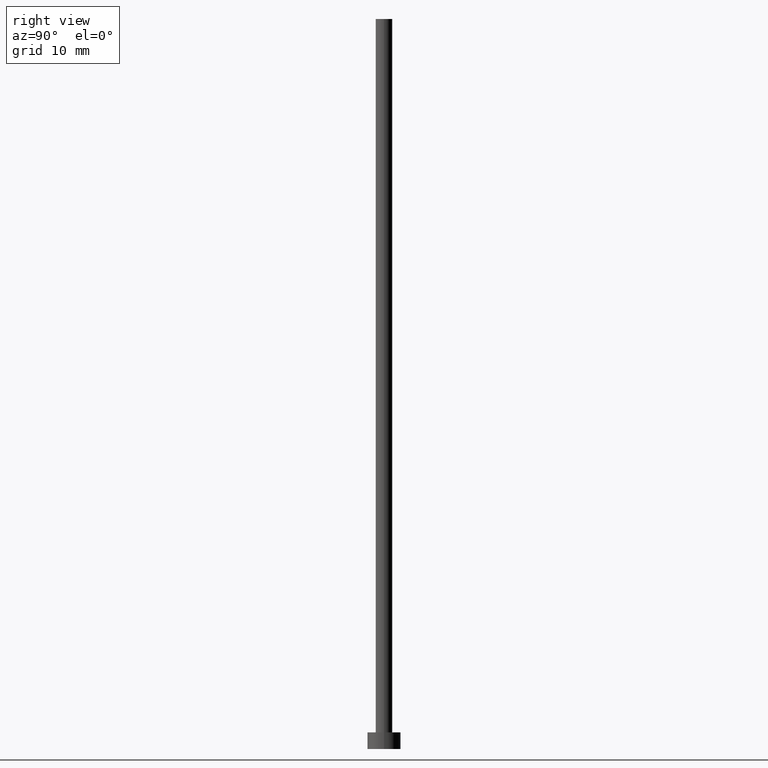
[diagram: clean part render]
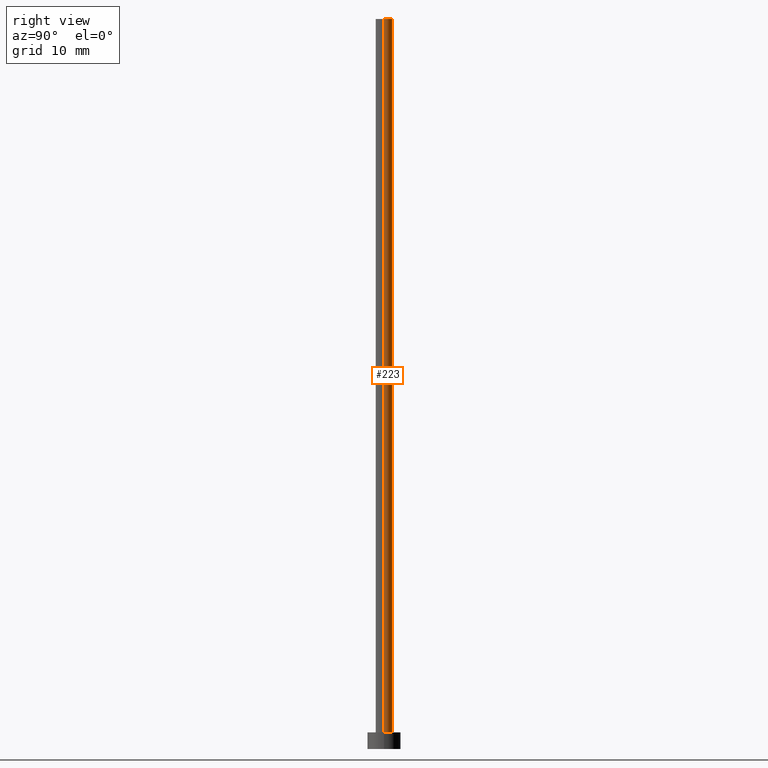
[diagram: same view with one face highlighted and labeled with its STEP entity id]
A machine part, right view. The second image highlights one B-rep face of the part: STEP entity #223.
In plain terms, the highlighted cylindrical surface (edge-blend (fillet) strip) has radius 1 mm, axis along (-0, -0, -1).
Its self-contained STEP definition (entity closure, byte-faithful):
#3 = DIRECTION ( 'NONE',  ( -0.000000000000000000, -0.000000000000000000, -1.000000000000000000 ) ) ;
#10 = CIRCLE ( 'NONE', #142, 1.000000000000000000 ) ;
#16 = DIRECTION ( 'NONE',  ( -0.000000000000000000, -0.000000000000000000, -1.000000000000000000 ) ) ;
#19 = EDGE_CURVE ( 'NONE', #199, #225, #220, .T. ) ;
#27 = ORIENTED_EDGE ( 'NONE', *, *, #113, .F. ) ;
#30 = AXIS2_PLACEMENT_3D ( 'NONE', #144, #93, #224 ) ;
#42 = DIRECTION ( 'NONE',  ( 0.000000000000000000, 0.000000000000000000, 1.000000000000000000 ) ) ;
#44 = CARTESIAN_POINT ( 'NONE',  ( 1.000000000000000000, 1.224646799147353207E-16, 2.000000000000000000 ) ) ;
#50 = CARTESIAN_POINT ( 'NONE',  ( -1.000000000000000000, 0.000000000000000000, 88.00000000000000000 ) ) ;
#59 = EDGE_CURVE ( 'NONE', #122, #225, #251, .T. ) ;
#61 = CARTESIAN_POINT ( 'NONE',  ( 0.000000000000000000, 0.000000000000000000, 88.00000000000000000 ) ) ;
#63 = DIRECTION ( 'NONE',  ( -1.000000000000000000, 0.000000000000000000, 0.000000000000000000 ) ) ;
#64 = CARTESIAN_POINT ( 'NONE',  ( 0.000000000000000000, 0.000000000000000000, 88.00000000000000000 ) ) ;
#79 = CARTESIAN_POINT ( 'NONE',  ( 1.000000000000000000, 1.224646799147353207E-16, 88.00000000000000000 ) ) ;
#93 = DIRECTION ( 'NONE',  ( 0.000000000000000000, 0.000000000000000000, 1.000000000000000000 ) ) ;
#102 = DIRECTION ( 'NONE',  ( -0.000000000000000000, -0.000000000000000000, -1.000000000000000000 ) ) ;
#109 = CARTESIAN_POINT ( 'NONE',  ( -1.000000000000000000, 0.000000000000000000, 88.00000000000000000 ) ) ;
#112 = FACE_OUTER_BOUND ( 'NONE', #158, .T. ) ;
#113 = EDGE_CURVE ( 'NONE', #241, #199, #10, .T. ) ;
#114 = CARTESIAN_POINT ( 'NONE',  ( 1.000000000000000000, 1.224646799147353207E-16, 88.00000000000000000 ) ) ;
#117 = VECTOR ( 'NONE', #3, 1000.000000000000000 ) ;
#122 = VERTEX_POINT ( 'NONE', #44 ) ;
#142 = AXIS2_PLACEMENT_3D ( 'NONE', #61, #42, #238 ) ;
#144 = CARTESIAN_POINT ( 'NONE',  ( 0.000000000000000000, 0.000000000000000000, 2.000000000000000000 ) ) ;
#145 = ORIENTED_EDGE ( 'NONE', *, *, #19, .F. ) ;
#150 = CARTESIAN_POINT ( 'NONE',  ( -1.000000000000000000, 0.000000000000000000, 2.000000000000000000 ) ) ;
#158 = EDGE_LOOP ( 'NONE', ( #27, #179, #204, #145 ) ) ;
#166 = LINE ( 'NONE', #79, #117 ) ;
#179 = ORIENTED_EDGE ( 'NONE', *, *, #184, .T. ) ;
#184 = EDGE_CURVE ( 'NONE', #241, #122, #166, .T. ) ;
#199 = VERTEX_POINT ( 'NONE', #109 ) ;
#204 = ORIENTED_EDGE ( 'NONE', *, *, #59, .T. ) ;
#212 = VECTOR ( 'NONE', #16, 1000.000000000000000 ) ;
#214 = AXIS2_PLACEMENT_3D ( 'NONE', #64, #102, #63 ) ;
#220 = LINE ( 'NONE', #50, #212 ) ;
#223 = ADVANCED_FACE ( 'NONE', ( #112 ), #232, .T. ) ;
#224 = DIRECTION ( 'NONE',  ( 1.000000000000000000, 0.000000000000000000, 0.000000000000000000 ) ) ;
#225 = VERTEX_POINT ( 'NONE', #150 ) ;
#232 = CYLINDRICAL_SURFACE ( 'NONE', #214, 1.000000000000000000 ) ;
#238 = DIRECTION ( 'NONE',  ( 1.000000000000000000, 0.000000000000000000, 0.000000000000000000 ) ) ;
#241 = VERTEX_POINT ( 'NONE', #114 ) ;
#251 = CIRCLE ( 'NONE', #30, 1.000000000000000000 ) ;